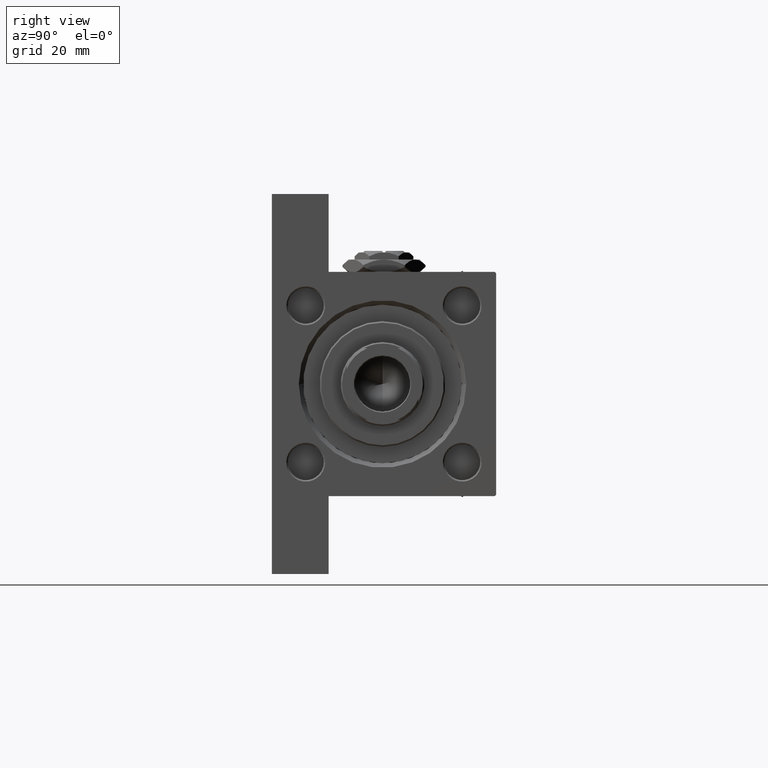
[diagram: clean part render]
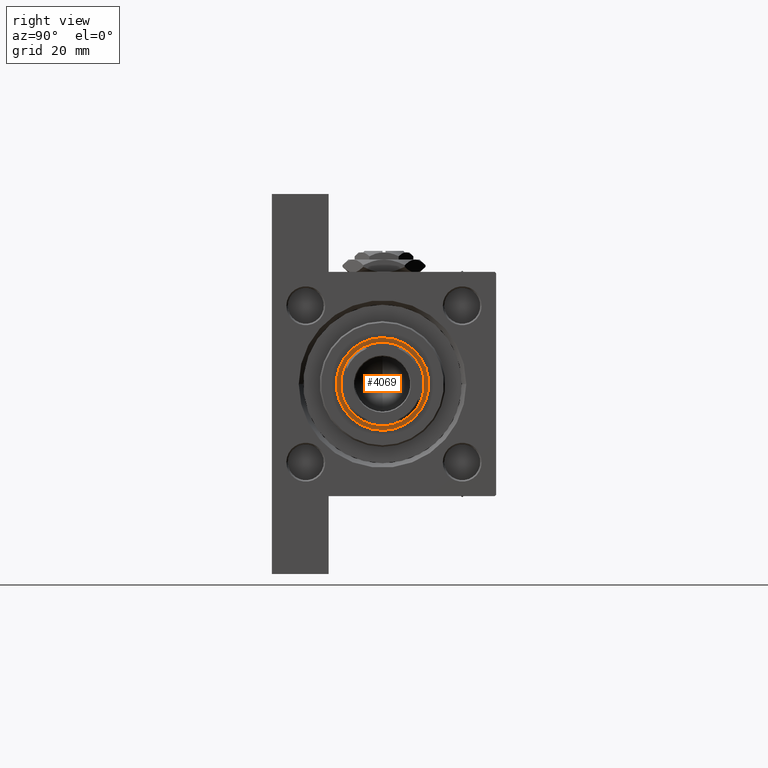
[diagram: same view with one face highlighted and labeled with its STEP entity id]
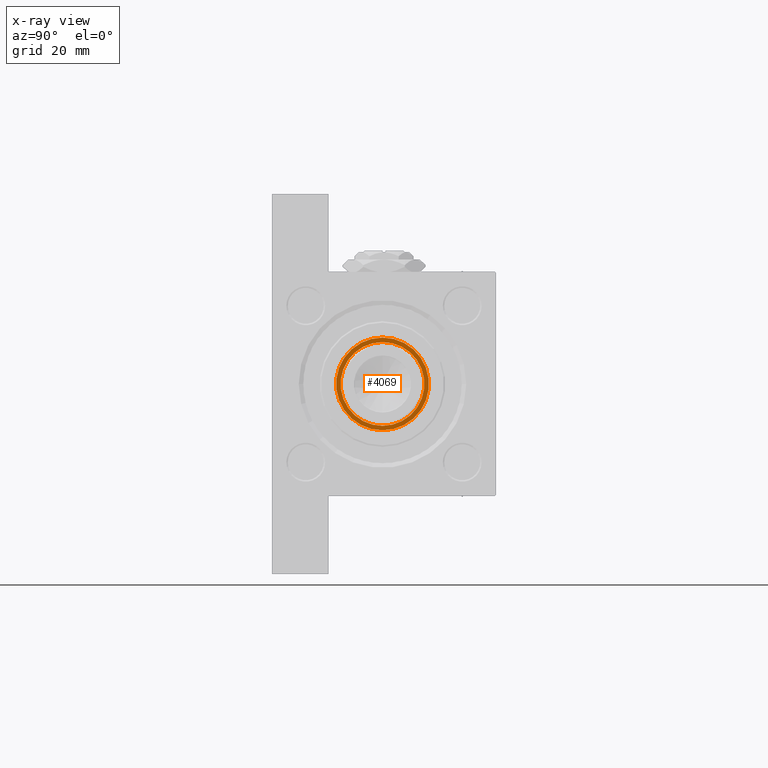
[diagram: x-ray of the same camera — body ghosted, the highlighted face saturated]
A machine part, right view. The second image highlights one B-rep face of the part: STEP entity #4069.
The next image is the same camera in x-ray: the body ghosted, the highlighted face saturated — about 0% of this face is hidden behind the body in this view.
In plain terms, the highlighted planar face has unit normal (1, 0, 0).
Its self-contained STEP definition (entity closure, byte-faithful):
#1471 = DIRECTION ( 'NONE',  ( 1.000000000000000000, 0.000000000000000000, 0.000000000000000000 ) ) ;
#3119 = AXIS2_PLACEMENT_3D ( 'NONE', #14358, #33449, #30179 ) ;
#4069 = ADVANCED_FACE ( 'NONE', ( #15308, #45224 ), #26132, .T. ) ;
#4101 = DIRECTION ( 'NONE',  ( -0.000000000000000000, -0.000000000000000000, -1.000000000000000000 ) ) ;
#5872 = AXIS2_PLACEMENT_3D ( 'NONE', #47712, #27875, #1471 ) ;
#7149 = CIRCLE ( 'NONE', #3119, 15.50000000000000000 ) ;
#7273 = DIRECTION ( 'NONE',  ( 1.000000000000000000, 0.000000000000000000, 0.000000000000000000 ) ) ;
#7493 = CIRCLE ( 'NONE', #5872, 15.50000000000000000 ) ;
#10566 = DIRECTION ( 'NONE',  ( 1.000000000000000000, 0.000000000000000000, -0.000000000000000000 ) ) ;
#10703 = ORIENTED_EDGE ( 'NONE', *, *, #25314, .T. ) ;
#11900 = CARTESIAN_POINT ( 'NONE',  ( 0.000000000000000000, 0.000000000000000000, 37.19999999999999574 ) ) ;
#11942 = EDGE_LOOP ( 'NONE', ( #29231, #10703 ) ) ;
#12112 = AXIS2_PLACEMENT_3D ( 'NONE', #11900, #4101, #23468 ) ;
#12749 = CARTESIAN_POINT ( 'NONE',  ( -14.00000000000000178, 1.714505518806294835E-15, 37.19999999999999574 ) ) ;
#12944 = CIRCLE ( 'NONE', #12112, 14.00000000000000178 ) ;
#14358 = CARTESIAN_POINT ( 'NONE',  ( 0.000000000000000000, 0.000000000000000000, 37.19999999999999574 ) ) ;
#15308 = FACE_OUTER_BOUND ( 'NONE', #11942, .T. ) ;
#15645 = CARTESIAN_POINT ( 'NONE',  ( 15.50000000000000000, 0.000000000000000000, 37.19999999999999574 ) ) ;
#16511 = EDGE_CURVE ( 'NONE', #38125, #25589, #12944, .T. ) ;
#16522 = CARTESIAN_POINT ( 'NONE',  ( -15.50000000000000000, 1.898202538678397557E-15, 37.19999999999999574 ) ) ;
#21800 = CARTESIAN_POINT ( 'NONE',  ( 14.00000000000000178, 0.000000000000000000, 37.19999999999999574 ) ) ;
#23468 = DIRECTION ( 'NONE',  ( 1.000000000000000000, 0.000000000000000000, 0.000000000000000000 ) ) ;
#23525 = AXIS2_PLACEMENT_3D ( 'NONE', #37901, #41671, #7273 ) ;
#24907 = EDGE_LOOP ( 'NONE', ( #48450, #25284 ) ) ;
#25284 = ORIENTED_EDGE ( 'NONE', *, *, #26162, .T. ) ;
#25314 = EDGE_CURVE ( 'NONE', #47965, #36274, #7493, .T. ) ;
#25589 = VERTEX_POINT ( 'NONE', #12749 ) ;
#25924 = CIRCLE ( 'NONE', #23525, 14.00000000000000178 ) ;
#26132 = PLANE ( 'NONE',  #39468 ) ;
#26162 = EDGE_CURVE ( 'NONE', #25589, #38125, #25924, .T. ) ;
#27875 = DIRECTION ( 'NONE',  ( 0.000000000000000000, 0.000000000000000000, 1.000000000000000000 ) ) ;
#29231 = ORIENTED_EDGE ( 'NONE', *, *, #35423, .T. ) ;
#30179 = DIRECTION ( 'NONE',  ( 1.000000000000000000, 0.000000000000000000, 0.000000000000000000 ) ) ;
#33449 = DIRECTION ( 'NONE',  ( 0.000000000000000000, 0.000000000000000000, 1.000000000000000000 ) ) ;
#35423 = EDGE_CURVE ( 'NONE', #36274, #47965, #7149, .T. ) ;
#36274 = VERTEX_POINT ( 'NONE', #15645 ) ;
#37671 = DIRECTION ( 'NONE',  ( 0.000000000000000000, 0.000000000000000000, 1.000000000000000000 ) ) ;
#37901 = CARTESIAN_POINT ( 'NONE',  ( 0.000000000000000000, 0.000000000000000000, 37.19999999999999574 ) ) ;
#38125 = VERTEX_POINT ( 'NONE', #21800 ) ;
#38159 = CARTESIAN_POINT ( 'NONE',  ( 0.000000000000000000, 0.000000000000000000, 37.19999999999999574 ) ) ;
#39468 = AXIS2_PLACEMENT_3D ( 'NONE', #38159, #37671, #10566 ) ;
#41671 = DIRECTION ( 'NONE',  ( -0.000000000000000000, -0.000000000000000000, -1.000000000000000000 ) ) ;
#45224 = FACE_BOUND ( 'NONE', #24907, .T. ) ;
#47712 = CARTESIAN_POINT ( 'NONE',  ( 0.000000000000000000, 0.000000000000000000, 37.19999999999999574 ) ) ;
#47965 = VERTEX_POINT ( 'NONE', #16522 ) ;
#48450 = ORIENTED_EDGE ( 'NONE', *, *, #16511, .T. ) ;